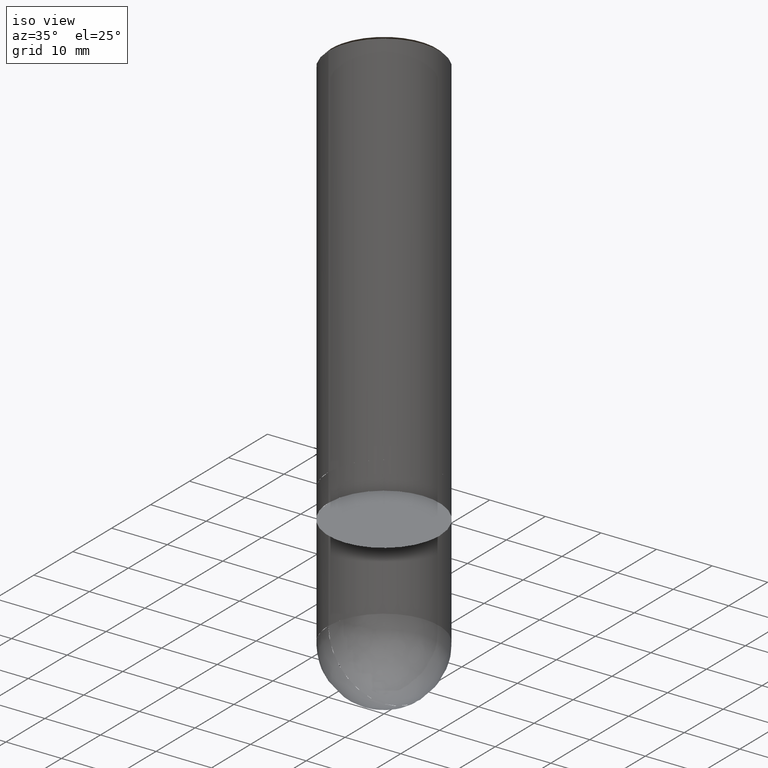
[diagram: clean part render]
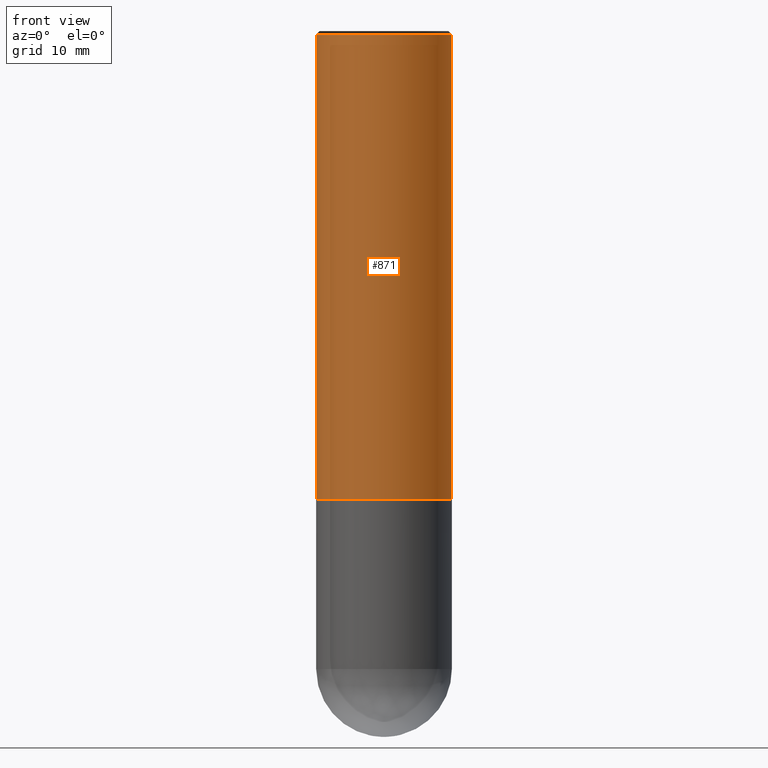
[diagram: tour spotlight — one face highlighted and labeled with its STEP entity id]
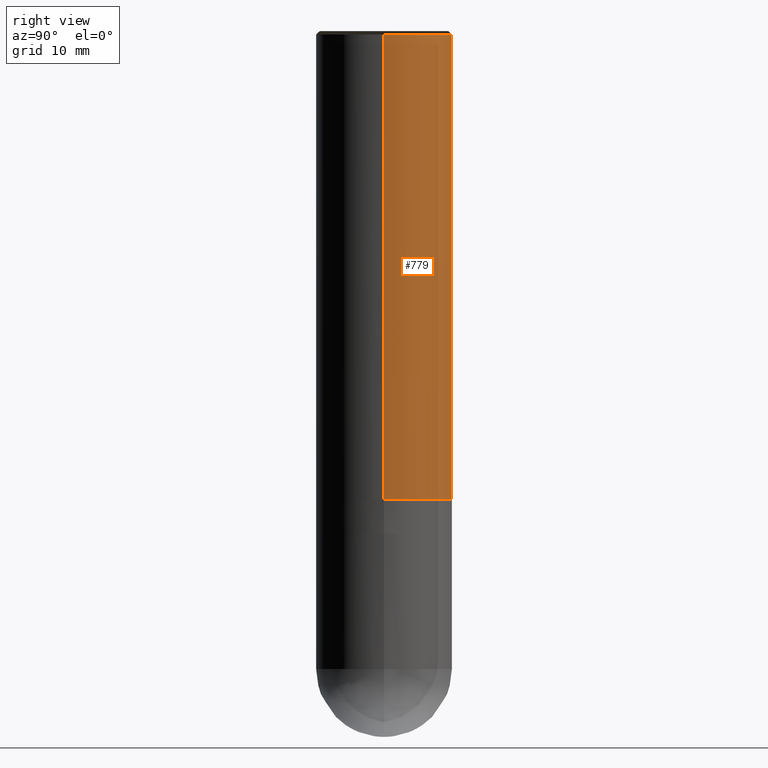
[diagram: tour spotlight — one face highlighted and labeled with its STEP entity id]
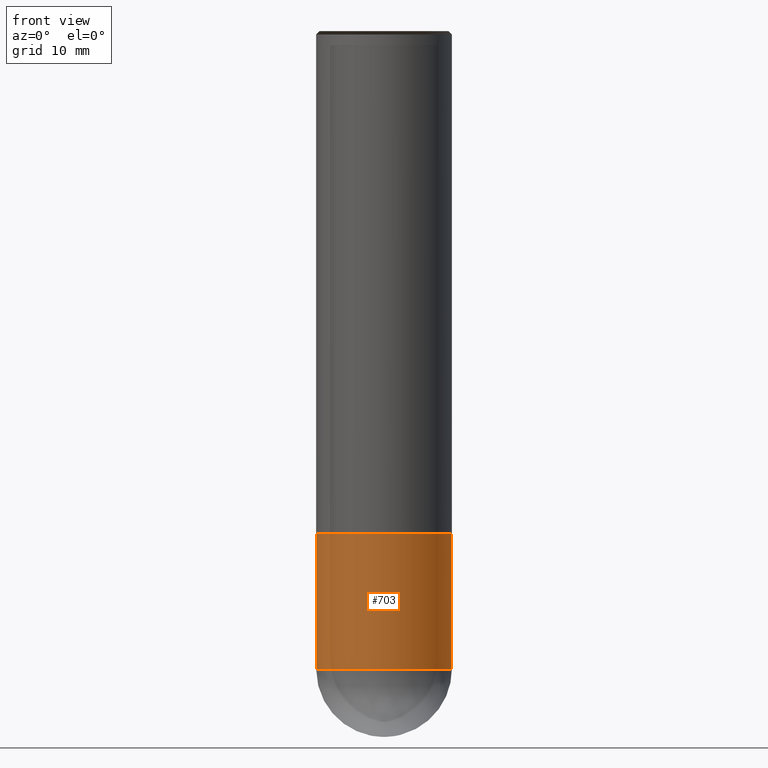
[diagram: tour spotlight — one face highlighted and labeled with its STEP entity id]
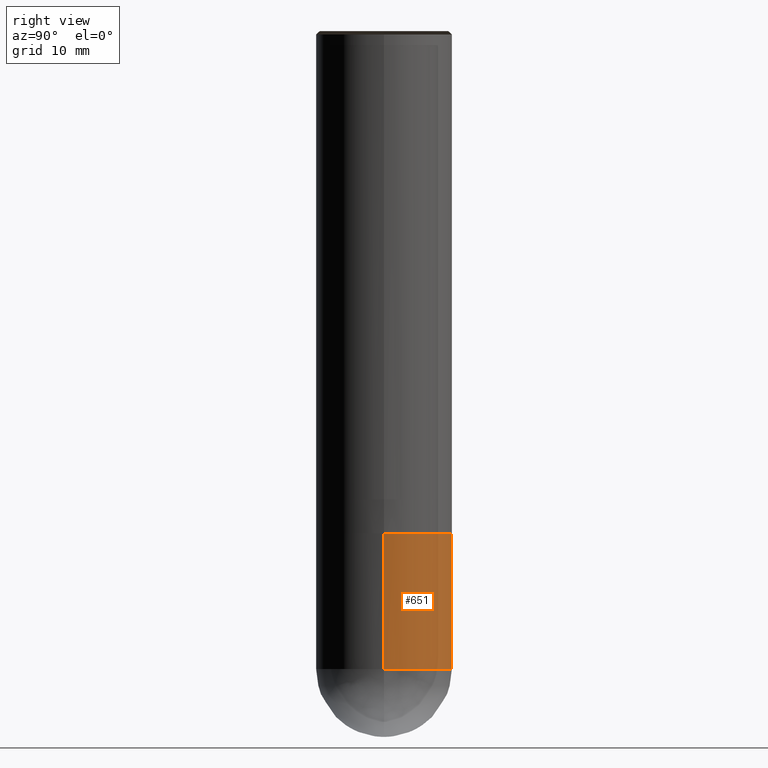
[diagram: tour spotlight — one face highlighted and labeled with its STEP entity id]
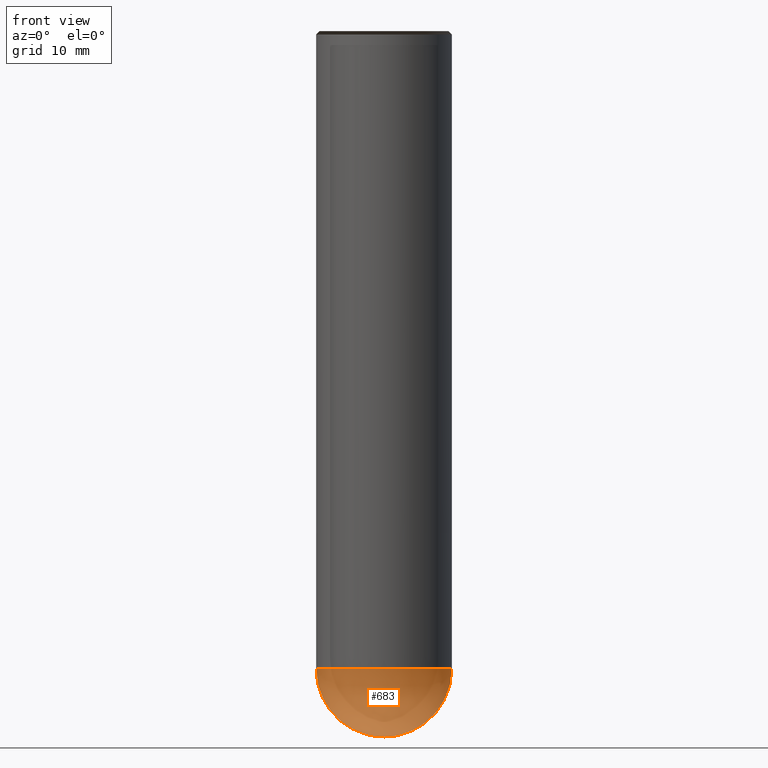
[diagram: tour spotlight — one face highlighted and labeled with its STEP entity id]
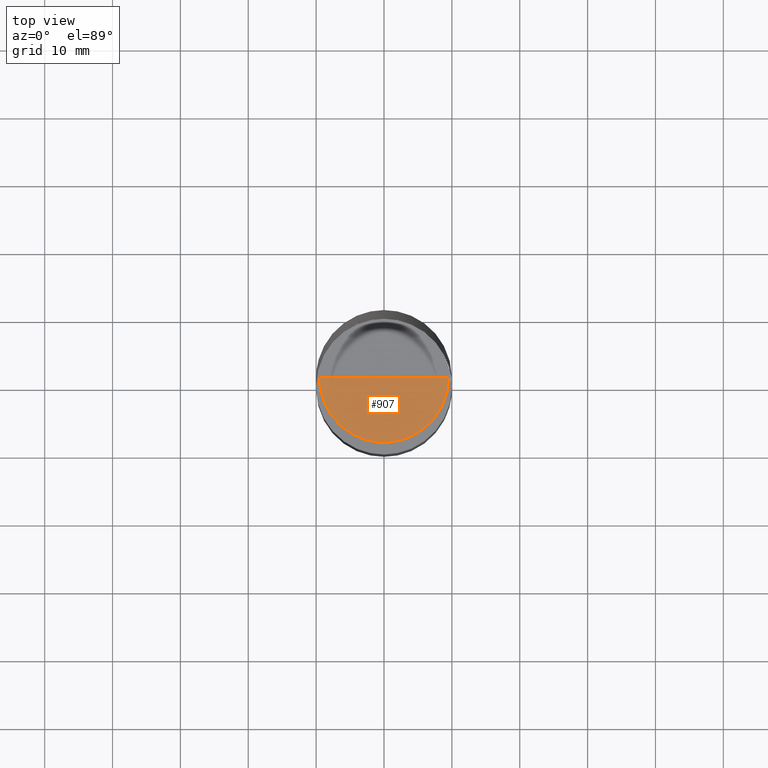
[diagram: tour spotlight — one face highlighted and labeled with its STEP entity id]
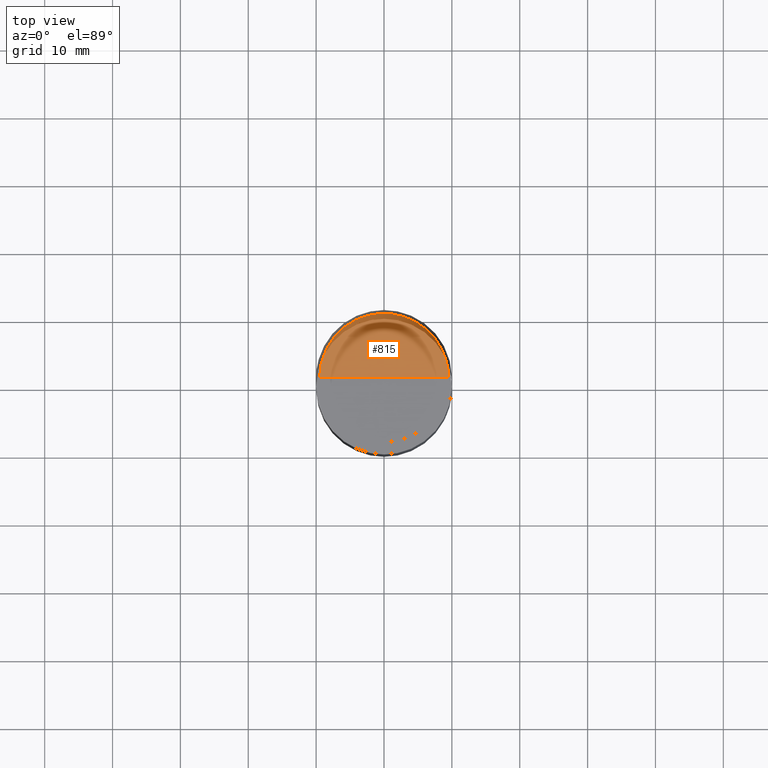
[diagram: tour spotlight — one face highlighted and labeled with its STEP entity id]
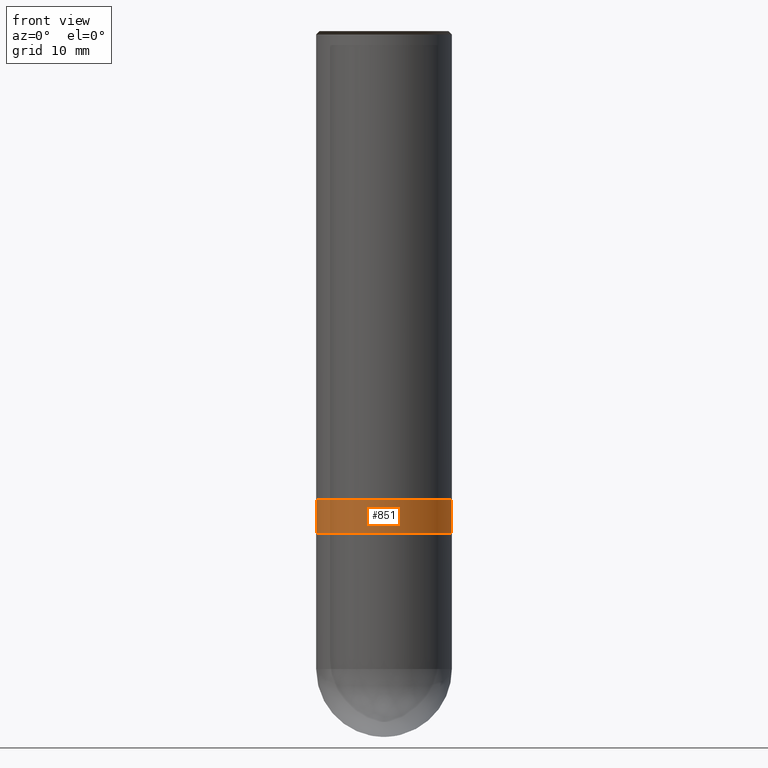
[diagram: tour spotlight — one face highlighted and labeled with its STEP entity id]
A machine part: a face-by-face anatomy tour. The part has 16 B-rep faces; the first image is the clean iso view, then the 8 largest visible faces are spotlighted one at a time (largest first), each with its STEP entity span.

Face 1 — front view, entity #871. In plain terms, the highlighted face is a freeform B-spline surface patch.
Definition (entity closure, byte-faithful):
#586=CARTESIAN_POINT('',(10.0,0.0,0.0));
#590=CARTESIAN_POINT('',(-10.0,0.0,0.0));
#591=CARTESIAN_POINT('',(10.0,0.0,68.5));
#595=CARTESIAN_POINT('',(-10.0,0.0,68.5));
#602=CARTESIAN_POINT('',(-10.0,-10.0,0.0));
#603=CARTESIAN_POINT('',(0.0,-10.0,0.0));
#604=CARTESIAN_POINT('',(10.0,-10.0,0.0));
#605=CARTESIAN_POINT('',(-10.0,-10.0,68.5));
#606=CARTESIAN_POINT('',(0.0,-10.0,68.5));
#607=CARTESIAN_POINT('',(10.0,-10.0,68.5));
#852=(
BOUNDED_SURFACE()
B_SPLINE_SURFACE(1,2,(
(#590,#602,#603,#604,#586),
(#595,#605,#606,#607,#591)
), .UNSPECIFIED.,.F.,.F.,.F.)
B_SPLINE_SURFACE_WITH_KNOTS((2,2),(3,2,3),(
0.0,1.0),(
0.0,0.5,1.0), .UNSPECIFIED.)
GEOMETRIC_REPRESENTATION_ITEM()
RATIONAL_B_SPLINE_SURFACE(((1.0,0.707106781187,1.0,0.707106781187,1.0),
(1.0,0.707106781187,1.0,0.707106781187,1.0)
))
REPRESENTATION_ITEM('')
SURFACE()
);
#853=(
BOUNDED_CURVE()
B_SPLINE_CURVE(2,(#586,#604,#603,#602,#590),.UNSPECIFIED.,.F.,.F.)
B_SPLINE_CURVE_WITH_KNOTS((3,2,3),
(0.0,0.5,1.0),.UNSPECIFIED.)
CURVE()
GEOMETRIC_REPRESENTATION_ITEM()
RATIONAL_B_SPLINE_CURVE((1.0,0.707106781187,1.0,0.707106781187,1.0))
REPRESENTATION_ITEM('')
);
#854=(
BOUNDED_CURVE()
B_SPLINE_CURVE(1,(#590,#595),.UNSPECIFIED.,.F.,.F.)
B_SPLINE_CURVE_WITH_KNOTS((2,2),
(0.0,1.0),.UNSPECIFIED.)
CURVE()
GEOMETRIC_REPRESENTATION_ITEM()
RATIONAL_B_SPLINE_CURVE((1.0,1.0))
REPRESENTATION_ITEM('')
);
#855=(
BOUNDED_CURVE()
B_SPLINE_CURVE(2,(#595,#605,#606,#607,#591),.UNSPECIFIED.,.F.,.F.)
B_SPLINE_CURVE_WITH_KNOTS((3,2,3),
(0.0,0.5,1.0),.UNSPECIFIED.)
CURVE()
GEOMETRIC_REPRESENTATION_ITEM()
RATIONAL_B_SPLINE_CURVE((1.0,0.707106781187,1.0,0.707106781187,1.0))
REPRESENTATION_ITEM('')
);
#856=(
BOUNDED_CURVE()
B_SPLINE_CURVE(1,(#591,#586),.UNSPECIFIED.,.F.,.F.)
B_SPLINE_CURVE_WITH_KNOTS((2,2),
(0.0,1.0),.UNSPECIFIED.)
CURVE()
GEOMETRIC_REPRESENTATION_ITEM()
RATIONAL_B_SPLINE_CURVE((1.0,1.0))
REPRESENTATION_ITEM('')
);
#857=VERTEX_POINT('',#586);
#858=VERTEX_POINT('',#590);
#859=VERTEX_POINT('',#591);
#860=VERTEX_POINT('',#595);
#861=EDGE_CURVE('',#857,#858,#853,.T.);
#862=EDGE_CURVE('',#858,#860,#854,.T.);
#863=EDGE_CURVE('',#860,#859,#855,.T.);
#864=EDGE_CURVE('',#859,#857,#856,.T.);
#865=ORIENTED_EDGE('',*,*,#861,.T.);
#866=ORIENTED_EDGE('',*,*,#862,.T.);
#867=ORIENTED_EDGE('',*,*,#863,.T.);
#868=ORIENTED_EDGE('',*,*,#864,.T.);
#869=EDGE_LOOP('',(#865,#866,#867,#868));
#870=FACE_OUTER_BOUND('',#869,.T.);
#871=ADVANCED_FACE('',(#870),#852,.T.);

Face 2 — right view, entity #779. In plain terms, the highlighted face is a freeform B-spline surface patch.
Definition (entity closure, byte-faithful):
#586=CARTESIAN_POINT('',(10.0,0.0,0.0));
#587=CARTESIAN_POINT('',(10.0,10.0,0.0));
#588=CARTESIAN_POINT('',(0.0,10.0,0.0));
#589=CARTESIAN_POINT('',(-10.0,10.0,0.0));
#590=CARTESIAN_POINT('',(-10.0,0.0,0.0));
#591=CARTESIAN_POINT('',(10.0,0.0,68.5));
#592=CARTESIAN_POINT('',(10.0,10.0,68.5));
#593=CARTESIAN_POINT('',(0.0,10.0,68.5));
#594=CARTESIAN_POINT('',(-10.0,10.0,68.5));
#595=CARTESIAN_POINT('',(-10.0,0.0,68.5));
#760=(
BOUNDED_SURFACE()
B_SPLINE_SURFACE(1,2,(
(#586,#587,#588,#589,#590),
(#591,#592,#593,#594,#595)
), .UNSPECIFIED.,.F.,.F.,.F.)
B_SPLINE_SURFACE_WITH_KNOTS((2,2),(3,2,3),(
0.0,1.0),(
0.0,0.5,1.0), .UNSPECIFIED.)
GEOMETRIC_REPRESENTATION_ITEM()
RATIONAL_B_SPLINE_SURFACE(((1.0,0.707106781187,1.0,0.707106781187,1.0),
(1.0,0.707106781187,1.0,0.707106781187,1.0)
))
REPRESENTATION_ITEM('')
SURFACE()
);
#761=(
BOUNDED_CURVE()
B_SPLINE_CURVE(2,(#590,#589,#588,#587,#586),.UNSPECIFIED.,.F.,.F.)
B_SPLINE_CURVE_WITH_KNOTS((3,2,3),
(0.0,0.5,1.0),.UNSPECIFIED.)
CURVE()
GEOMETRIC_REPRESENTATION_ITEM()
RATIONAL_B_SPLINE_CURVE((1.0,0.707106781187,1.0,0.707106781187,1.0))
REPRESENTATION_ITEM('')
);
#762=(
BOUNDED_CURVE()
B_SPLINE_CURVE(1,(#586,#591),.UNSPECIFIED.,.F.,.F.)
B_SPLINE_CURVE_WITH_KNOTS((2,2),
(0.0,1.0),.UNSPECIFIED.)
CURVE()
GEOMETRIC_REPRESENTATION_ITEM()
RATIONAL_B_SPLINE_CURVE((1.0,1.0))
REPRESENTATION_ITEM('')
);
#763=(
BOUNDED_CURVE()
B_SPLINE_CURVE(2,(#591,#592,#593,#594,#595),.UNSPECIFIED.,.F.,.F.)
B_SPLINE_CURVE_WITH_KNOTS((3,2,3),
(0.0,0.5,1.0),.UNSPECIFIED.)
CURVE()
GEOMETRIC_REPRESENTATION_ITEM()
RATIONAL_B_SPLINE_CURVE((1.0,0.707106781187,1.0,0.707106781187,1.0))
REPRESENTATION_ITEM('')
);
#764=(
BOUNDED_CURVE()
B_SPLINE_CURVE(1,(#595,#590),.UNSPECIFIED.,.F.,.F.)
B_SPLINE_CURVE_WITH_KNOTS((2,2),
(0.0,1.0),.UNSPECIFIED.)
CURVE()
GEOMETRIC_REPRESENTATION_ITEM()
RATIONAL_B_SPLINE_CURVE((1.0,1.0))
REPRESENTATION_ITEM('')
);
#765=VERTEX_POINT('',#586);
#766=VERTEX_POINT('',#590);
#767=VERTEX_POINT('',#591);
#768=VERTEX_POINT('',#595);
#769=EDGE_CURVE('',#766,#765,#761,.T.);
#770=EDGE_CURVE('',#765,#767,#762,.T.);
#771=EDGE_CURVE('',#767,#768,#763,.T.);
#772=EDGE_CURVE('',#768,#766,#764,.T.);
#773=ORIENTED_EDGE('',*,*,#769,.T.);
#774=ORIENTED_EDGE('',*,*,#770,.T.);
#775=ORIENTED_EDGE('',*,*,#771,.T.);
#776=ORIENTED_EDGE('',*,*,#772,.T.);
#777=EDGE_LOOP('',(#773,#774,#775,#776));
#778=FACE_OUTER_BOUND('',#777,.T.);
#779=ADVANCED_FACE('',(#778),#760,.T.);

Face 3 — front view, entity #703. In plain terms, the highlighted face is a freeform B-spline surface patch.
Definition (entity closure, byte-faithful):
#566=CARTESIAN_POINT('',(10.0,0.0,-25.0));
#570=CARTESIAN_POINT('',(-10.0,0.0,-25.0));
#571=CARTESIAN_POINT('',(10.0,0.0,-5.0));
#575=CARTESIAN_POINT('',(-10.0,0.0,-5.0));
#580=CARTESIAN_POINT('',(-10.0,-10.0,-25.0));
#581=CARTESIAN_POINT('',(0.0,-10.0,-25.0));
#582=CARTESIAN_POINT('',(10.0,-10.0,-25.0));
#583=CARTESIAN_POINT('',(-10.0,-10.0,-5.0));
#584=CARTESIAN_POINT('',(0.0,-10.0,-5.0));
#585=CARTESIAN_POINT('',(10.0,-10.0,-5.0));
#684=(
BOUNDED_SURFACE()
B_SPLINE_SURFACE(1,2,(
(#570,#580,#581,#582,#566),
(#575,#583,#584,#585,#571)
), .UNSPECIFIED.,.F.,.F.,.F.)
B_SPLINE_SURFACE_WITH_KNOTS((2,2),(3,2,3),(
0.0,1.0),(
0.0,0.5,1.0), .UNSPECIFIED.)
GEOMETRIC_REPRESENTATION_ITEM()
RATIONAL_B_SPLINE_SURFACE(((1.0,0.707106781187,1.0,0.707106781187,1.0),
(1.0,0.707106781187,1.0,0.707106781187,1.0)
))
REPRESENTATION_ITEM('')
SURFACE()
);
#685=(
BOUNDED_CURVE()
B_SPLINE_CURVE(2,(#566,#582,#581,#580,#570),.UNSPECIFIED.,.F.,.F.)
B_SPLINE_CURVE_WITH_KNOTS((3,2,3),
(0.0,0.5,1.0),.UNSPECIFIED.)
CURVE()
GEOMETRIC_REPRESENTATION_ITEM()
RATIONAL_B_SPLINE_CURVE((1.0,0.707106781187,1.0,0.707106781187,1.0))
REPRESENTATION_ITEM('')
);
#686=(
BOUNDED_CURVE()
B_SPLINE_CURVE(1,(#570,#575),.UNSPECIFIED.,.F.,.F.)
B_SPLINE_CURVE_WITH_KNOTS((2,2),
(0.0,1.0),.UNSPECIFIED.)
CURVE()
GEOMETRIC_REPRESENTATION_ITEM()
RATIONAL_B_SPLINE_CURVE((1.0,1.0))
REPRESENTATION_ITEM('')
);
#687=(
BOUNDED_CURVE()
B_SPLINE_CURVE(2,(#575,#583,#584,#585,#571),.UNSPECIFIED.,.F.,.F.)
B_SPLINE_CURVE_WITH_KNOTS((3,2,3),
(0.0,0.5,1.0),.UNSPECIFIED.)
CURVE()
GEOMETRIC_REPRESENTATION_ITEM()
RATIONAL_B_SPLINE_CURVE((1.0,0.707106781187,1.0,0.707106781187,1.0))
REPRESENTATION_ITEM('')
);
#688=(
BOUNDED_CURVE()
B_SPLINE_CURVE(1,(#571,#566),.UNSPECIFIED.,.F.,.F.)
B_SPLINE_CURVE_WITH_KNOTS((2,2),
(0.0,1.0),.UNSPECIFIED.)
CURVE()
GEOMETRIC_REPRESENTATION_ITEM()
RATIONAL_B_SPLINE_CURVE((1.0,1.0))
REPRESENTATION_ITEM('')
);
#689=VERTEX_POINT('',#566);
#690=VERTEX_POINT('',#570);
#691=VERTEX_POINT('',#571);
#692=VERTEX_POINT('',#575);
#693=EDGE_CURVE('',#689,#690,#685,.T.);
#694=EDGE_CURVE('',#690,#692,#686,.T.);
#695=EDGE_CURVE('',#692,#691,#687,.T.);
#696=EDGE_CURVE('',#691,#689,#688,.T.);
#697=ORIENTED_EDGE('',*,*,#693,.T.);
#698=ORIENTED_EDGE('',*,*,#694,.T.);
#699=ORIENTED_EDGE('',*,*,#695,.T.);
#700=ORIENTED_EDGE('',*,*,#696,.T.);
#701=EDGE_LOOP('',(#697,#698,#699,#700));
#702=FACE_OUTER_BOUND('',#701,.T.);
#703=ADVANCED_FACE('',(#702),#684,.T.);

Face 4 — right view, entity #651. In plain terms, the highlighted face is a freeform B-spline surface patch.
Definition (entity closure, byte-faithful):
#566=CARTESIAN_POINT('',(10.0,0.0,-25.0));
#567=CARTESIAN_POINT('',(10.0,10.0,-25.0));
#568=CARTESIAN_POINT('',(0.0,10.0,-25.0));
#569=CARTESIAN_POINT('',(-10.0,10.0,-25.0));
#570=CARTESIAN_POINT('',(-10.0,0.0,-25.0));
#571=CARTESIAN_POINT('',(10.0,0.0,-5.0));
#572=CARTESIAN_POINT('',(10.0,10.0,-5.0));
#573=CARTESIAN_POINT('',(0.0,10.0,-5.0));
#574=CARTESIAN_POINT('',(-10.0,10.0,-5.0));
#575=CARTESIAN_POINT('',(-10.0,0.0,-5.0));
#632=(
BOUNDED_SURFACE()
B_SPLINE_SURFACE(1,2,(
(#566,#567,#568,#569,#570),
(#571,#572,#573,#574,#575)
), .UNSPECIFIED.,.F.,.F.,.F.)
B_SPLINE_SURFACE_WITH_KNOTS((2,2),(3,2,3),(
0.0,1.0),(
0.0,0.5,1.0), .UNSPECIFIED.)
GEOMETRIC_REPRESENTATION_ITEM()
RATIONAL_B_SPLINE_SURFACE(((1.0,0.707106781187,1.0,0.707106781187,1.0),
(1.0,0.707106781187,1.0,0.707106781187,1.0)
))
REPRESENTATION_ITEM('')
SURFACE()
);
#633=(
BOUNDED_CURVE()
B_SPLINE_CURVE(2,(#570,#569,#568,#567,#566),.UNSPECIFIED.,.F.,.F.)
B_SPLINE_CURVE_WITH_KNOTS((3,2,3),
(0.0,0.5,1.0),.UNSPECIFIED.)
CURVE()
GEOMETRIC_REPRESENTATION_ITEM()
RATIONAL_B_SPLINE_CURVE((1.0,0.707106781187,1.0,0.707106781187,1.0))
REPRESENTATION_ITEM('')
);
#634=(
BOUNDED_CURVE()
B_SPLINE_CURVE(1,(#566,#571),.UNSPECIFIED.,.F.,.F.)
B_SPLINE_CURVE_WITH_KNOTS((2,2),
(0.0,1.0),.UNSPECIFIED.)
CURVE()
GEOMETRIC_REPRESENTATION_ITEM()
RATIONAL_B_SPLINE_CURVE((1.0,1.0))
REPRESENTATION_ITEM('')
);
#635=(
BOUNDED_CURVE()
B_SPLINE_CURVE(2,(#571,#572,#573,#574,#575),.UNSPECIFIED.,.F.,.F.)
B_SPLINE_CURVE_WITH_KNOTS((3,2,3),
(0.0,0.5,1.0),.UNSPECIFIED.)
CURVE()
GEOMETRIC_REPRESENTATION_ITEM()
RATIONAL_B_SPLINE_CURVE((1.0,0.707106781187,1.0,0.707106781187,1.0))
REPRESENTATION_ITEM('')
);
#636=(
BOUNDED_CURVE()
B_SPLINE_CURVE(1,(#575,#570),.UNSPECIFIED.,.F.,.F.)
B_SPLINE_CURVE_WITH_KNOTS((2,2),
(0.0,1.0),.UNSPECIFIED.)
CURVE()
GEOMETRIC_REPRESENTATION_ITEM()
RATIONAL_B_SPLINE_CURVE((1.0,1.0))
REPRESENTATION_ITEM('')
);
#637=VERTEX_POINT('',#566);
#638=VERTEX_POINT('',#570);
#639=VERTEX_POINT('',#571);
#640=VERTEX_POINT('',#575);
#641=EDGE_CURVE('',#638,#637,#633,.T.);
#642=EDGE_CURVE('',#637,#639,#634,.T.);
#643=EDGE_CURVE('',#639,#640,#635,.T.);
#644=EDGE_CURVE('',#640,#638,#636,.T.);
#645=ORIENTED_EDGE('',*,*,#641,.T.);
#646=ORIENTED_EDGE('',*,*,#642,.T.);
#647=ORIENTED_EDGE('',*,*,#643,.T.);
#648=ORIENTED_EDGE('',*,*,#644,.T.);
#649=EDGE_LOOP('',(#645,#646,#647,#648));
#650=FACE_OUTER_BOUND('',#649,.T.);
#651=ADVANCED_FACE('',(#650),#632,.T.);

Face 5 — front view, entity #683. In plain terms, the highlighted face is a freeform B-spline surface patch.
Definition (entity closure, byte-faithful):
#560=CARTESIAN_POINT('',(0.0,0.0,-35.0));
#561=CARTESIAN_POINT('',(10.0,0.0,-35.0));
#565=CARTESIAN_POINT('',(-10.0,0.0,-35.0));
#566=CARTESIAN_POINT('',(10.0,0.0,-25.0));
#570=CARTESIAN_POINT('',(-10.0,0.0,-25.0));
#577=CARTESIAN_POINT('',(-10.0,-10.0,-35.0));
#578=CARTESIAN_POINT('',(0.0,-10.0,-35.0));
#579=CARTESIAN_POINT('',(10.0,-10.0,-35.0));
#580=CARTESIAN_POINT('',(-10.0,-10.0,-25.0));
#581=CARTESIAN_POINT('',(0.0,-10.0,-25.0));
#582=CARTESIAN_POINT('',(10.0,-10.0,-25.0));
#668=(
BOUNDED_SURFACE()
B_SPLINE_SURFACE(2,2,(
(#560,#560,#560,#560,#560),
(#565,#577,#578,#579,#561),
(#570,#580,#581,#582,#566)
), .UNSPECIFIED.,.F.,.F.,.F.)
B_SPLINE_SURFACE_WITH_KNOTS((3,3),(3,2,3),(
0.0,1.0),(
0.0,0.5,1.0), .UNSPECIFIED.)
GEOMETRIC_REPRESENTATION_ITEM()
RATIONAL_B_SPLINE_SURFACE(((1.0,0.707106781187,1.0,0.707106781187,1.0),
(0.707106781187,0.5,0.707106781187,0.5,0.707106781187),
(1.0,0.707106781187,1.0,0.707106781187,1.0)
))
REPRESENTATION_ITEM('')
SURFACE()
);
#669=(
BOUNDED_CURVE()
B_SPLINE_CURVE(2,(#566,#561,#560),.UNSPECIFIED.,.F.,.F.)
B_SPLINE_CURVE_WITH_KNOTS((3,3),
(0.0,1.0),.UNSPECIFIED.)
CURVE()
GEOMETRIC_REPRESENTATION_ITEM()
RATIONAL_B_SPLINE_CURVE((1.0,0.707106781187,1.0))
REPRESENTATION_ITEM('')
);
#670=(
BOUNDED_CURVE()
B_SPLINE_CURVE(2,(#560,#565,#570),.UNSPECIFIED.,.F.,.F.)
B_SPLINE_CURVE_WITH_KNOTS((3,3),
(0.0,1.0),.UNSPECIFIED.)
CURVE()
GEOMETRIC_REPRESENTATION_ITEM()
RATIONAL_B_SPLINE_CURVE((1.0,0.707106781187,1.0))
REPRESENTATION_ITEM('')
);
#671=(
BOUNDED_CURVE()
B_SPLINE_CURVE(2,(#570,#580,#581,#582,#566),.UNSPECIFIED.,.F.,.F.)
B_SPLINE_CURVE_WITH_KNOTS((3,2,3),
(0.0,0.5,1.0),.UNSPECIFIED.)
CURVE()
GEOMETRIC_REPRESENTATION_ITEM()
RATIONAL_B_SPLINE_CURVE((1.0,0.707106781187,1.0,0.707106781187,1.0))
REPRESENTATION_ITEM('')
);
#672=VERTEX_POINT('',#560);
#673=VERTEX_POINT('',#566);
#674=VERTEX_POINT('',#570);
#675=EDGE_CURVE('',#673,#672,#669,.T.);
#676=EDGE_CURVE('',#672,#674,#670,.T.);
#677=EDGE_CURVE('',#674,#673,#671,.T.);
#678=ORIENTED_EDGE('',*,*,#675,.T.);
#679=ORIENTED_EDGE('',*,*,#676,.T.);
#680=ORIENTED_EDGE('',*,*,#677,.T.);
#681=EDGE_LOOP('',(#678,#679,#680));
#682=FACE_OUTER_BOUND('',#681,.T.);
#683=ADVANCED_FACE('',(#682),#668,.T.);

Face 6 — top view, entity #907. In plain terms, the highlighted face is a freeform B-spline surface patch.
Definition (entity closure, byte-faithful):
#596=CARTESIAN_POINT('',(9.5,0.0,69.0));
#600=CARTESIAN_POINT('',(-9.5,0.0,69.0));
#601=CARTESIAN_POINT('',(0.0,0.0,69.0));
#608=CARTESIAN_POINT('',(-9.5,-9.5,69.0));
#609=CARTESIAN_POINT('',(0.0,-9.5,69.0));
#610=CARTESIAN_POINT('',(9.5,-9.5,69.0));
#892=(
BOUNDED_SURFACE()
B_SPLINE_SURFACE(1,2,(
(#600,#608,#609,#610,#596),
(#601,#601,#601,#601,#601)
), .UNSPECIFIED.,.F.,.F.,.F.)
B_SPLINE_SURFACE_WITH_KNOTS((2,2),(3,2,3),(
0.0,1.0),(
0.0,0.5,1.0), .UNSPECIFIED.)
GEOMETRIC_REPRESENTATION_ITEM()
RATIONAL_B_SPLINE_SURFACE(((1.0,0.707106781187,1.0,0.707106781187,1.0),
(1.0,0.707106781187,1.0,0.707106781187,1.0)
))
REPRESENTATION_ITEM('')
SURFACE()
);
#893=(
BOUNDED_CURVE()
B_SPLINE_CURVE(2,(#596,#610,#609,#608,#600),.UNSPECIFIED.,.F.,.F.)
B_SPLINE_CURVE_WITH_KNOTS((3,2,3),
(0.0,0.5,1.0),.UNSPECIFIED.)
CURVE()
GEOMETRIC_REPRESENTATION_ITEM()
RATIONAL_B_SPLINE_CURVE((1.0,0.707106781187,1.0,0.707106781187,1.0))
REPRESENTATION_ITEM('')
);
#894=(
BOUNDED_CURVE()
B_SPLINE_CURVE(1,(#600,#601),.UNSPECIFIED.,.F.,.F.)
B_SPLINE_CURVE_WITH_KNOTS((2,2),
(0.0,1.0),.UNSPECIFIED.)
CURVE()
GEOMETRIC_REPRESENTATION_ITEM()
RATIONAL_B_SPLINE_CURVE((1.0,1.0))
REPRESENTATION_ITEM('')
);
#895=(
BOUNDED_CURVE()
B_SPLINE_CURVE(1,(#601,#596),.UNSPECIFIED.,.F.,.F.)
B_SPLINE_CURVE_WITH_KNOTS((2,2),
(0.0,1.0),.UNSPECIFIED.)
CURVE()
GEOMETRIC_REPRESENTATION_ITEM()
RATIONAL_B_SPLINE_CURVE((1.0,1.0))
REPRESENTATION_ITEM('')
);
#896=VERTEX_POINT('',#596);
#897=VERTEX_POINT('',#600);
#898=VERTEX_POINT('',#601);
#899=EDGE_CURVE('',#896,#897,#893,.T.);
#900=EDGE_CURVE('',#897,#898,#894,.T.);
#901=EDGE_CURVE('',#898,#896,#895,.T.);
#902=ORIENTED_EDGE('',*,*,#899,.T.);
#903=ORIENTED_EDGE('',*,*,#900,.T.);
#904=ORIENTED_EDGE('',*,*,#901,.T.);
#905=EDGE_LOOP('',(#902,#903,#904));
#906=FACE_OUTER_BOUND('',#905,.T.);
#907=ADVANCED_FACE('',(#906),#892,.T.);

Face 7 — top view, entity #815. In plain terms, the highlighted face is a freeform B-spline surface patch.
Definition (entity closure, byte-faithful):
#596=CARTESIAN_POINT('',(9.5,0.0,69.0));
#597=CARTESIAN_POINT('',(9.5,9.5,69.0));
#598=CARTESIAN_POINT('',(0.0,9.5,69.0));
#599=CARTESIAN_POINT('',(-9.5,9.5,69.0));
#600=CARTESIAN_POINT('',(-9.5,0.0,69.0));
#601=CARTESIAN_POINT('',(0.0,0.0,69.0));
#800=(
BOUNDED_SURFACE()
B_SPLINE_SURFACE(1,2,(
(#596,#597,#598,#599,#600),
(#601,#601,#601,#601,#601)
), .UNSPECIFIED.,.F.,.F.,.F.)
B_SPLINE_SURFACE_WITH_KNOTS((2,2),(3,2,3),(
0.0,1.0),(
0.0,0.5,1.0), .UNSPECIFIED.)
GEOMETRIC_REPRESENTATION_ITEM()
RATIONAL_B_SPLINE_SURFACE(((1.0,0.707106781187,1.0,0.707106781187,1.0),
(1.0,0.707106781187,1.0,0.707106781187,1.0)
))
REPRESENTATION_ITEM('')
SURFACE()
);
#801=(
BOUNDED_CURVE()
B_SPLINE_CURVE(2,(#600,#599,#598,#597,#596),.UNSPECIFIED.,.F.,.F.)
B_SPLINE_CURVE_WITH_KNOTS((3,2,3),
(0.0,0.5,1.0),.UNSPECIFIED.)
CURVE()
GEOMETRIC_REPRESENTATION_ITEM()
RATIONAL_B_SPLINE_CURVE((1.0,0.707106781187,1.0,0.707106781187,1.0))
REPRESENTATION_ITEM('')
);
#802=(
BOUNDED_CURVE()
B_SPLINE_CURVE(1,(#596,#601),.UNSPECIFIED.,.F.,.F.)
B_SPLINE_CURVE_WITH_KNOTS((2,2),
(0.0,1.0),.UNSPECIFIED.)
CURVE()
GEOMETRIC_REPRESENTATION_ITEM()
RATIONAL_B_SPLINE_CURVE((1.0,1.0))
REPRESENTATION_ITEM('')
);
#803=(
BOUNDED_CURVE()
B_SPLINE_CURVE(1,(#601,#600),.UNSPECIFIED.,.F.,.F.)
B_SPLINE_CURVE_WITH_KNOTS((2,2),
(0.0,1.0),.UNSPECIFIED.)
CURVE()
GEOMETRIC_REPRESENTATION_ITEM()
RATIONAL_B_SPLINE_CURVE((1.0,1.0))
REPRESENTATION_ITEM('')
);
#804=VERTEX_POINT('',#596);
#805=VERTEX_POINT('',#600);
#806=VERTEX_POINT('',#601);
#807=EDGE_CURVE('',#805,#804,#801,.T.);
#808=EDGE_CURVE('',#804,#806,#802,.T.);
#809=EDGE_CURVE('',#806,#805,#803,.T.);
#810=ORIENTED_EDGE('',*,*,#807,.T.);
#811=ORIENTED_EDGE('',*,*,#808,.T.);
#812=ORIENTED_EDGE('',*,*,#809,.T.);
#813=EDGE_LOOP('',(#810,#811,#812));
#814=FACE_OUTER_BOUND('',#813,.T.);
#815=ADVANCED_FACE('',(#814),#800,.T.);

Face 8 — front view, entity #851. In plain terms, the highlighted face is a freeform B-spline surface patch.
Definition (entity closure, byte-faithful):
#571=CARTESIAN_POINT('',(10.0,0.0,-5.0));
#575=CARTESIAN_POINT('',(-10.0,0.0,-5.0));
#583=CARTESIAN_POINT('',(-10.0,-10.0,-5.0));
#584=CARTESIAN_POINT('',(0.0,-10.0,-5.0));
#585=CARTESIAN_POINT('',(10.0,-10.0,-5.0));
#586=CARTESIAN_POINT('',(10.0,0.0,0.0));
#590=CARTESIAN_POINT('',(-10.0,0.0,0.0));
#602=CARTESIAN_POINT('',(-10.0,-10.0,0.0));
#603=CARTESIAN_POINT('',(0.0,-10.0,0.0));
#604=CARTESIAN_POINT('',(10.0,-10.0,0.0));
#832=(
BOUNDED_SURFACE()
B_SPLINE_SURFACE(1,2,(
(#575,#583,#584,#585,#571),
(#590,#602,#603,#604,#586)
), .UNSPECIFIED.,.F.,.F.,.F.)
B_SPLINE_SURFACE_WITH_KNOTS((2,2),(3,2,3),(
0.0,1.0),(
0.0,0.5,1.0), .UNSPECIFIED.)
GEOMETRIC_REPRESENTATION_ITEM()
RATIONAL_B_SPLINE_SURFACE(((1.0,0.707106781187,1.0,0.707106781187,1.0),
(1.0,0.707106781187,1.0,0.707106781187,1.0)
))
REPRESENTATION_ITEM('')
SURFACE()
);
#833=(
BOUNDED_CURVE()
B_SPLINE_CURVE(2,(#571,#585,#584,#583,#575),.UNSPECIFIED.,.F.,.F.)
B_SPLINE_CURVE_WITH_KNOTS((3,2,3),
(0.0,0.5,1.0),.UNSPECIFIED.)
CURVE()
GEOMETRIC_REPRESENTATION_ITEM()
RATIONAL_B_SPLINE_CURVE((1.0,0.707106781187,1.0,0.707106781187,1.0))
REPRESENTATION_ITEM('')
);
#834=(
BOUNDED_CURVE()
B_SPLINE_CURVE(1,(#575,#590),.UNSPECIFIED.,.F.,.F.)
B_SPLINE_CURVE_WITH_KNOTS((2,2),
(0.0,1.0),.UNSPECIFIED.)
CURVE()
GEOMETRIC_REPRESENTATION_ITEM()
RATIONAL_B_SPLINE_CURVE((1.0,1.0))
REPRESENTATION_ITEM('')
);
#835=(
BOUNDED_CURVE()
B_SPLINE_CURVE(2,(#590,#602,#603,#604,#586),.UNSPECIFIED.,.F.,.F.)
B_SPLINE_CURVE_WITH_KNOTS((3,2,3),
(0.0,0.5,1.0),.UNSPECIFIED.)
CURVE()
GEOMETRIC_REPRESENTATION_ITEM()
RATIONAL_B_SPLINE_CURVE((1.0,0.707106781187,1.0,0.707106781187,1.0))
REPRESENTATION_ITEM('')
);
#836=(
BOUNDED_CURVE()
B_SPLINE_CURVE(1,(#586,#571),.UNSPECIFIED.,.F.,.F.)
B_SPLINE_CURVE_WITH_KNOTS((2,2),
(0.0,1.0),.UNSPECIFIED.)
CURVE()
GEOMETRIC_REPRESENTATION_ITEM()
RATIONAL_B_SPLINE_CURVE((1.0,1.0))
REPRESENTATION_ITEM('')
);
#837=VERTEX_POINT('',#571);
#838=VERTEX_POINT('',#575);
#839=VERTEX_POINT('',#586);
#840=VERTEX_POINT('',#590);
#841=EDGE_CURVE('',#837,#838,#833,.T.);
#842=EDGE_CURVE('',#838,#840,#834,.T.);
#843=EDGE_CURVE('',#840,#839,#835,.T.);
#844=EDGE_CURVE('',#839,#837,#836,.T.);
#845=ORIENTED_EDGE('',*,*,#841,.T.);
#846=ORIENTED_EDGE('',*,*,#842,.T.);
#847=ORIENTED_EDGE('',*,*,#843,.T.);
#848=ORIENTED_EDGE('',*,*,#844,.T.);
#849=EDGE_LOOP('',(#845,#846,#847,#848));
#850=FACE_OUTER_BOUND('',#849,.T.);
#851=ADVANCED_FACE('',(#850),#832,.T.);